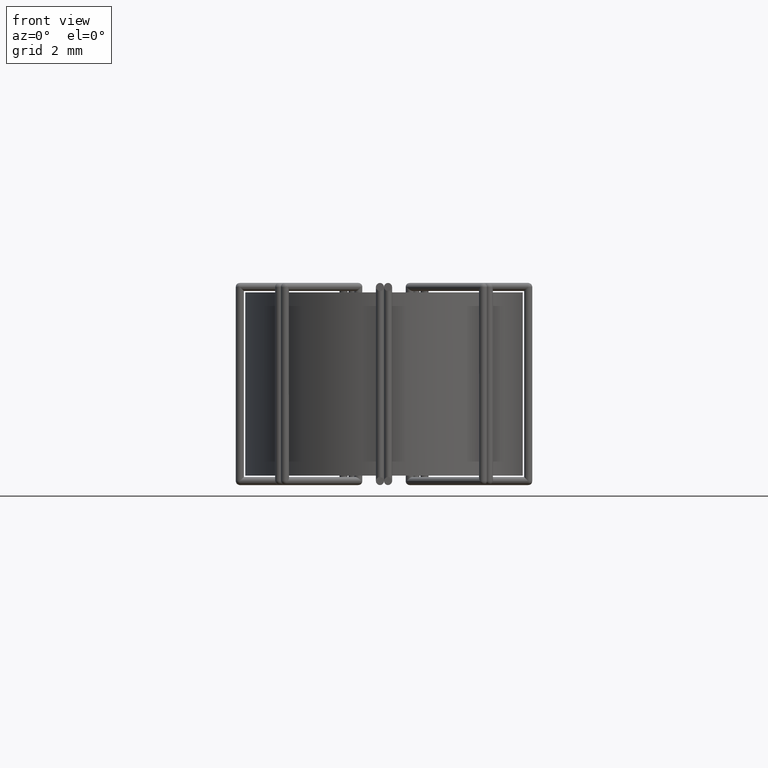
[diagram: clean part render]
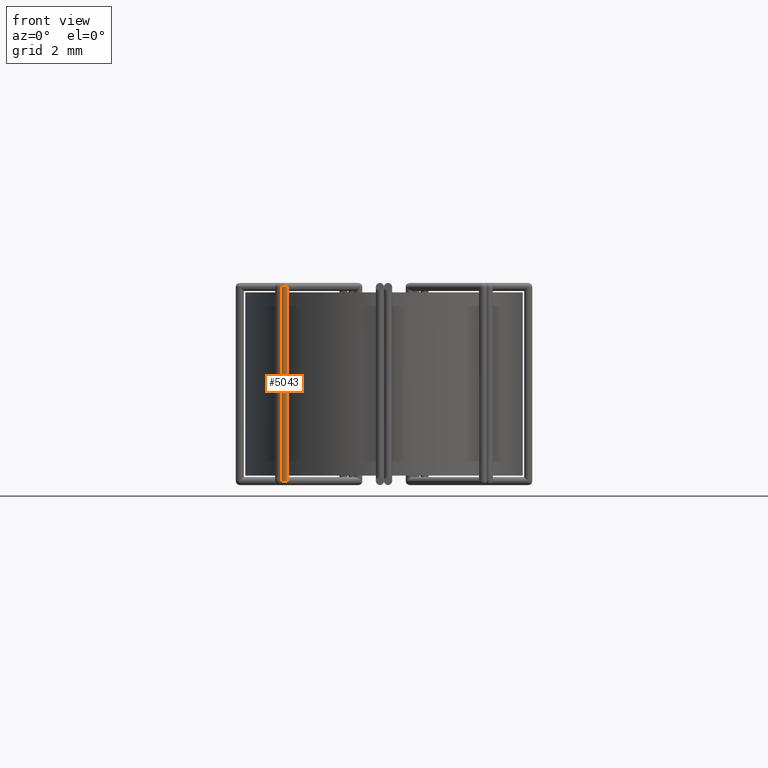
[diagram: same view with one face highlighted and labeled with its STEP entity id]
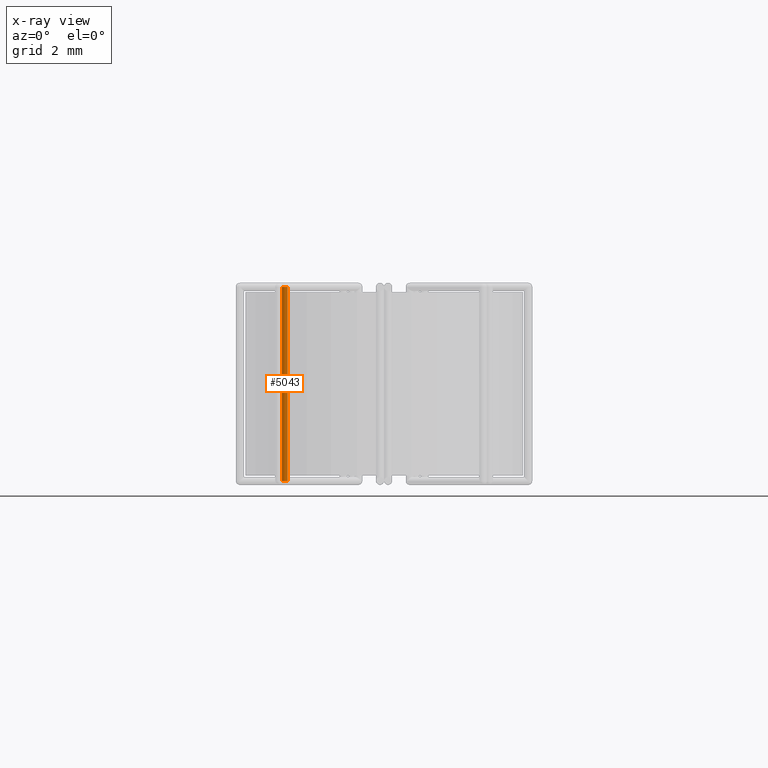
[diagram: x-ray of the same camera — body ghosted, the highlighted face saturated]
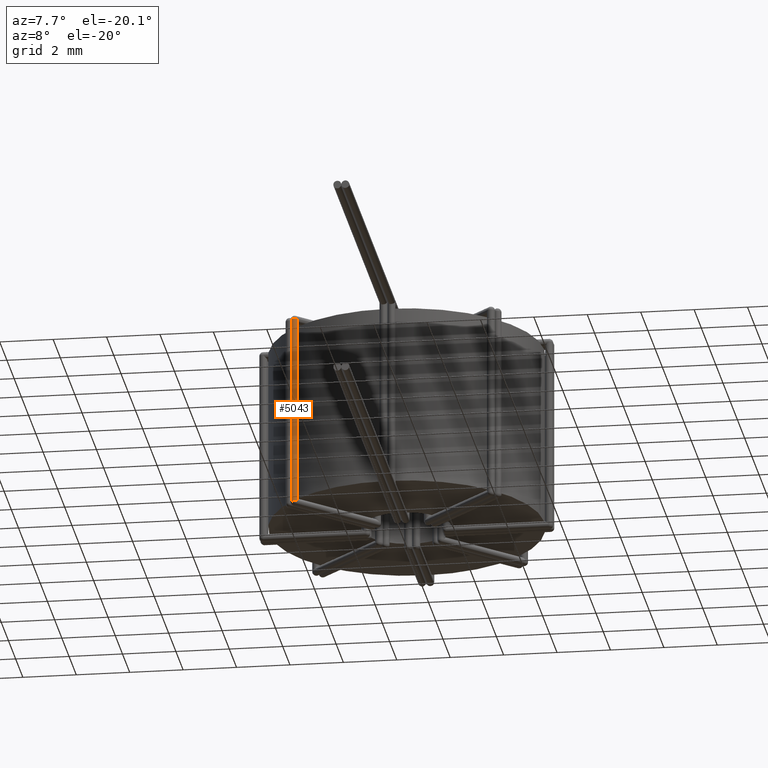
[diagram: same view with one face highlighted and labeled with its STEP entity id]
A machine part, front view. The second image highlights one B-rep face of the part: STEP entity #5043.
The next image is the same camera in x-ray: the body ghosted, the highlighted face saturated — about 0% of this face is hidden behind the body in this view.
A second angle (auxiliary view) of the same face is appended — the face is thin or edge-on in the first view.
In plain terms, the highlighted cylindrical surface (edge-blend (fillet) strip) has radius 0.15 mm, axis along (0, 0, 1).
Its self-contained STEP definition (entity closure, byte-faithful):
#168 = ORIENTED_EDGE ( 'NONE', *, *, #14073, .F. ) ;
#185 = ORIENTED_EDGE ( 'NONE', *, *, #1015, .F. ) ;
#378 = CYLINDRICAL_SURFACE ( 'NONE', #10711, 0.1499999999999999100 ) ;
#1015 = EDGE_CURVE ( 'NONE', #9383, #1451, #13082, .T. ) ;
#1369 = FACE_OUTER_BOUND ( 'NONE', #15656, .T. ) ;
#1451 = VERTEX_POINT ( 'NONE', #11158 ) ;
#2657 = EDGE_CURVE ( 'NONE', #9383, #9694, #2785, .T. ) ;
#2785 = LINE ( 'NONE', #6855, #10802 ) ;
#3205 = DIRECTION ( 'NONE',  ( 8.177564888977981800E-017, 8.177564888978010200E-017, 1.000000000000000000 ) ) ;
#3491 = AXIS2_PLACEMENT_3D ( 'NONE', #8332, #7188, #4726 ) ;
#3688 = DIRECTION ( 'NONE',  ( -0.7071067811865460200, -0.7071067811865489100, 1.807003620809175100E-016 ) ) ;
#4395 = DIRECTION ( 'NONE',  ( -8.177564888977983100E-017, -8.177564888978010200E-017, -1.000000000000000000 ) ) ;
#4408 = DIRECTION ( 'NONE',  ( -8.177564888977983100E-017, -8.177564888978010200E-017, -1.000000000000000000 ) ) ;
#4484 = CARTESIAN_POINT ( 'NONE',  ( -3.676955262170041200, -3.889087296526018400, -0.3499999999999995300 ) ) ;
#4726 = DIRECTION ( 'NONE',  ( 0.7071067811865460200, 0.7071067811865489100, 0.0000000000000000000 ) ) ;
#5043 = ADVANCED_FACE ( 'NONE', ( #1369 ), #378, .T. ) ;
#5115 = LINE ( 'NONE', #5810, #11216 ) ;
#5810 = CARTESIAN_POINT ( 'NONE',  ( -3.570889244992058800, -3.995153313704000700, 6.187180397650613300E-016 ) ) ;
#6101 = CARTESIAN_POINT ( 'NONE',  ( -3.676955262170041200, -3.889087296526018400, -0.1999999999999995400 ) ) ;
#6262 = VERTEX_POINT ( 'NONE', #15684 ) ;
#6855 = CARTESIAN_POINT ( 'NONE',  ( -3.783021279348023100, -3.995153313704000700, -0.3499999999999995300 ) ) ;
#6950 = ORIENTED_EDGE ( 'NONE', *, *, #8646, .F. ) ;
#7188 = DIRECTION ( 'NONE',  ( 0.0000000000000000000, 0.0000000000000000000, 1.000000000000000000 ) ) ;
#8332 = CARTESIAN_POINT ( 'NONE',  ( -3.676955262170040300, -3.889087296526017500, 7.000000000000000000 ) ) ;
#8547 = ORIENTED_EDGE ( 'NONE', *, *, #2657, .T. ) ;
#8646 = EDGE_CURVE ( 'NONE', #6262, #9694, #15024, .T. ) ;
#9383 = VERTEX_POINT ( 'NONE', #12907 ) ;
#9694 = VERTEX_POINT ( 'NONE', #14998 ) ;
#9838 = DIRECTION ( 'NONE',  ( -1.277744513902810100E-016, -1.277744513902814500E-016, -1.000000000000000000 ) ) ;
#10711 = AXIS2_PLACEMENT_3D ( 'NONE', #4484, #3205, #13014 ) ;
#10802 = VECTOR ( 'NONE', #4395, 1000.000000000000000 ) ;
#11158 = CARTESIAN_POINT ( 'NONE',  ( -3.570889244992058000, -3.995153313703999800, 7.000000000000000000 ) ) ;
#11216 = VECTOR ( 'NONE', #4408, 1000.000000000000000 ) ;
#12907 = CARTESIAN_POINT ( 'NONE',  ( -3.783021279348022200, -3.995153313703999800, 7.000000000000000000 ) ) ;
#13014 = DIRECTION ( 'NONE',  ( 0.7071067811865460200, 0.7071067811865489100, 0.0000000000000000000 ) ) ;
#13082 = CIRCLE ( 'NONE', #3491, 0.1499999999999999100 ) ;
#13254 = AXIS2_PLACEMENT_3D ( 'NONE', #6101, #9838, #3688 ) ;
#14073 = EDGE_CURVE ( 'NONE', #1451, #6262, #5115, .T. ) ;
#14998 = CARTESIAN_POINT ( 'NONE',  ( -3.783021279348023100, -3.995153313704000700, -0.1999999999999995100 ) ) ;
#15024 = CIRCLE ( 'NONE', #13254, 0.1499999999999999100 ) ;
#15656 = EDGE_LOOP ( 'NONE', ( #185, #8547, #6950, #168 ) ) ;
#15684 = CARTESIAN_POINT ( 'NONE',  ( -3.570889244992058800, -3.995153313704000700, -0.1999999999999995400 ) ) ;